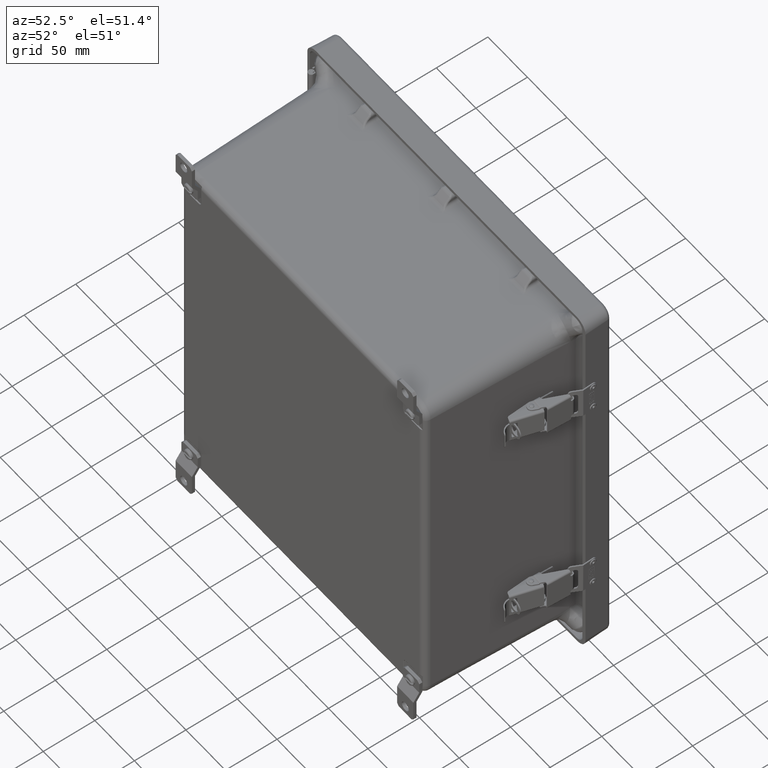
[diagram: clean part render]
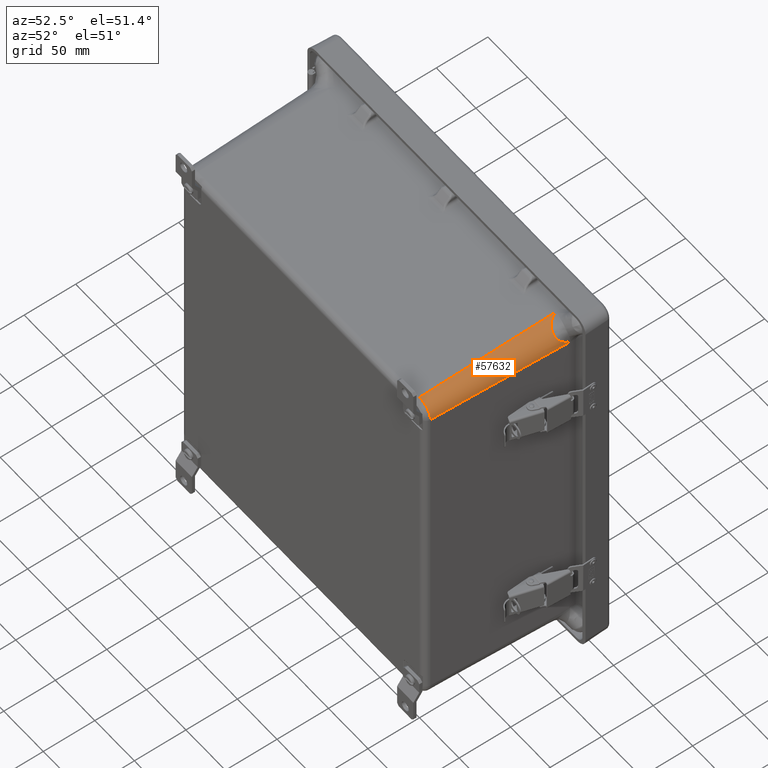
[diagram: same view with one face highlighted and labeled with its STEP entity id]
A machine part, auxiliary view. The second image highlights one B-rep face of the part: STEP entity #57632.
In plain terms, the highlighted conical surface has half-angle 2 deg.
Its self-contained STEP definition (entity closure, byte-faithful):
#1491 = DIRECTION ( 'NONE',  ( 0.0000000000000000000, 1.000000000000000000, 0.0000000000000000000 ) ) ;
#2203 = ORIENTED_EDGE ( 'NONE', *, *, #43623, .F. ) ;
#2614 = CARTESIAN_POINT ( 'NONE',  ( 5.679987494047503000, -0.9575307801325283500, 7.151426502611800000 ) ) ;
#3998 = CARTESIAN_POINT ( 'NONE',  ( 6.178411836836827900, -1.052958364751709800, 6.716936216959720900 ) ) ;
#4910 = EDGE_CURVE ( 'NONE', #35689, #17203, #21859, .T. ) ;
#7169 = CARTESIAN_POINT ( 'NONE',  ( 5.925950539922443000, -1.140795264757232600, 7.033265326212347900 ) ) ;
#7375 = CARTESIAN_POINT ( 'NONE',  ( 5.621246510641986700, -0.8832323153907923900, 7.165316051684122600 ) ) ;
#8574 = CARTESIAN_POINT ( 'NONE',  ( 6.239291214696592600, -0.7433845534150394000, 6.477348340551458300 ) ) ;
#8773 = CARTESIAN_POINT ( 'NONE',  ( 6.150242233827873100, -1.097426850505620200, 6.776583432548924300 ) ) ;
#10130 = CARTESIAN_POINT ( 'NONE',  ( 5.514759860282454800, -5.886844587691332000, 6.452978309398321100 ) ) ;
#10671 = CONICAL_SURFACE ( 'NONE', #61290, 0.7510500000000007700, 0.03490658503988666700 ) ;
#11949 = CARTESIAN_POINT ( 'NONE',  ( 5.888237045062486400, -1.125173721257649800, 7.058854199394057000 ) ) ;
#12138 = FACE_OUTER_BOUND ( 'NONE', #36748, .T. ) ;
#12150 = CARTESIAN_POINT ( 'NONE',  ( 5.569111246878644100, -0.8031829212671555100, 7.173913658273606100 ) ) ;
#13332 = CARTESIAN_POINT ( 'NONE',  ( 6.235851312620466700, -0.7999947081710109300, 6.506695316036054800 ) ) ;
#13549 = CARTESIAN_POINT ( 'NONE',  ( 6.120509643086672100, -1.124809575850616000, 6.826687679674548400 ) ) ;
#13636 = CARTESIAN_POINT ( 'NONE',  ( 5.514759860282454800, -0.6878654707445428500, 7.179828810769564000 ) ) ;
#14911 = DIRECTION ( 'NONE',  ( 0.0000000000000000000, 0.0000000000000000000, -1.000000000000000000 ) ) ;
#15123 = EDGE_CURVE ( 'NONE', #54061, #58144, #44282, .T. ) ;
#15347 = LINE ( 'NONE', #33100, #51645 ) ;
#15400 = CARTESIAN_POINT ( 'NONE',  ( 5.514759860282454800, -5.886844587691329300, 6.998276459434253900 ) ) ;
#16687 = CARTESIAN_POINT ( 'NONE',  ( 5.838952295910280200, -1.098442055014640800, 7.088103871977986100 ) ) ;
#16899 = CARTESIAN_POINT ( 'NONE',  ( 5.539476739019201000, -0.7467147203375197300, 7.177382253432628400 ) ) ;
#17203 = VERTEX_POINT ( 'NONE', #59224 ) ;
#18087 = CARTESIAN_POINT ( 'NONE',  ( 6.227311089718170900, -0.8804847959524350100, 6.558682501122297600 ) ) ;
#18271 = CARTESIAN_POINT ( 'NONE',  ( 6.094928109012484700, -1.140525218739650200, 6.864353307322136100 ) ) ;
#18532 = CARTESIAN_POINT ( 'NONE',  ( 5.514759860282454800, -1.156043319571057300, 6.452978309398321100 ) ) ;
#20130 = DIRECTION ( 'NONE',  ( 0.0000000000000000000, 0.0000000000000000000, -1.000000000000000000 ) ) ;
#21439 = CARTESIAN_POINT ( 'NONE',  ( 5.779244325676248000, -1.054295614428741000, 7.116371474388640400 ) ) ;
#21641 = CARTESIAN_POINT ( 'NONE',  ( 5.520282036880981700, -0.7028933228596210300, 7.179304026609898400 ) ) ;
#21802 = AXIS2_PLACEMENT_3D ( 'NONE', #10130, #43271, #14911 ) ;
#21859 = CIRCLE ( 'NONE', #57810, 0.7105013706312298700 ) ;
#22793 = CARTESIAN_POINT ( 'NONE',  ( 6.213510190717571800, -0.9551322726255288000, 6.617285435856517000 ) ) ;
#23018 = CARTESIAN_POINT ( 'NONE',  ( 6.045705688641075600, -1.156043319571060000, 6.926223117663457900 ) ) ;
#23292 = DIRECTION ( 'NONE',  ( 0.0000000000000000000, 0.0000000000000000000, -1.000000000000000000 ) ) ;
#23561 = DIRECTION ( 'NONE',  ( 0.03489949670250104600, 0.9993908270190957600, 0.0000000000000000000 ) ) ;
#24509 = VERTEX_POINT ( 'NONE', #13636 ) ;
#26215 = CARTESIAN_POINT ( 'NONE',  ( 5.744643217420730300, -1.024036304310188100, 7.130243405876011100 ) ) ;
#26702 = B_SPLINE_CURVE_WITH_KNOTS ( 'NONE', 3,
 ( #40127, #49632, #35536, #7169, #40333, #11949, #45069, #16687, #49837, #21439, #54547, #26215, #59330, #30964, #2614, #35743, #7375, #40521, #12150, #45273, #16899, #50037, #21641, #54754 ),
 .UNSPECIFIED., .F., .F.,
 ( 4, 2, 2, 2, 2, 2, 2, 2, 2, 2, 2, 4 ),
 ( 3.469446951953614200E-018, 0.002426579721962712200, 0.003639869582944066700, 0.004853159443925420800, 0.007279739165888198500, 0.008493029026869616800, 0.009706318887851034200, 0.01213289860981388600, 0.01455947833177673900, 0.01698605805373959400, 0.01819934791472104300, 0.01941263777570249500 ),
 .UNSPECIFIED. ) ;
#27544 = ORIENTED_EDGE ( 'NONE', *, *, #54843, .T. ) ;
#27594 = CARTESIAN_POINT ( 'NONE',  ( 6.196363179894262000, -1.011718899480175600, 6.671038573730122300 ) ) ;
#27985 = CARTESIAN_POINT ( 'NONE',  ( 5.514759860282454800, 0.005117501308141511400, 7.204028309398322200 ) ) ;
#29645 = ORIENTED_EDGE ( 'NONE', *, *, #4910, .T. ) ;
#30964 = CARTESIAN_POINT ( 'NONE',  ( 5.700790242073137100, -0.9807123007714347900, 7.145417738483393700 ) ) ;
#31969 = CARTESIAN_POINT ( 'NONE',  ( 6.023043583009056500, -1.156043319571060000, 6.949425542123050200 ) ) ;
#32143 = ORIENTED_EDGE ( 'NONE', *, *, #38752, .T. ) ;
#32165 = CARTESIAN_POINT ( 'NONE',  ( 6.241742277826465300, -0.6840878858090632100, 6.452978309398321100 ) ) ;
#32358 = CARTESIAN_POINT ( 'NONE',  ( 6.183280157816374100, -1.043128550387321300, 6.705294303357436400 ) ) ;
#32702 = ORIENTED_EDGE ( 'NONE', *, *, #15123, .T. ) ;
#33100 = CARTESIAN_POINT ( 'NONE',  ( 6.265809860282455900, 0.005117501308141511400, 6.452978309398321100 ) ) ;
#35536 = CARTESIAN_POINT ( 'NONE',  ( 5.963169097911922700, -1.152100256554891500, 7.005159179034730100 ) ) ;
#35689 = VERTEX_POINT ( 'NONE', #31969 ) ;
#35743 = CARTESIAN_POINT ( 'NONE',  ( 5.640234619254226100, -0.9088211746607494100, 7.161377704973273400 ) ) ;
#36748 = EDGE_LOOP ( 'NONE', ( #27544, #32143, #29645, #48885, #2203, #32702 ) ) ;
#36914 = CARTESIAN_POINT ( 'NONE',  ( 6.240631905435815700, -0.7141828377404601000, 6.464329438304420500 ) ) ;
#36993 = VERTEX_POINT ( 'NONE', #41051 ) ;
#37129 = CARTESIAN_POINT ( 'NONE',  ( 6.162524220692981600, -1.080880675640739200, 6.752342818864487800 ) ) ;
#37973 = VECTOR ( 'NONE', #61101, 39.37007874015748900 ) ;
#38752 = EDGE_CURVE ( 'NONE', #36993, #35689, #42633, .T. ) ;
#40127 = CARTESIAN_POINT ( 'NONE',  ( 6.010368976948479200, -1.156043319571057300, 6.962079282827342100 ) ) ;
#40333 = CARTESIAN_POINT ( 'NONE',  ( 5.913264865372306100, -1.136075625140325900, 7.042234541328917400 ) ) ;
#40521 = CARTESIAN_POINT ( 'NONE',  ( 5.585750149294875100, -0.8304874211240495000, 7.171574625692580100 ) ) ;
#41051 = CARTESIAN_POINT ( 'NONE',  ( 6.241742277826465300, -0.6840878858090632100, 6.452978309398321100 ) ) ;
#41694 = CARTESIAN_POINT ( 'NONE',  ( 6.238529287866606800, -0.7577055658338199800, 6.484377731423123200 ) ) ;
#41890 = CARTESIAN_POINT ( 'NONE',  ( 6.128411681569585500, -1.118426198038611000, 6.813977313812640300 ) ) ;
#42633 = B_SPLINE_CURVE_WITH_KNOTS ( 'NONE', 3,
 ( #32165, #60490, #36914, #8574, #41694, #13332, #46433, #18087, #51217, #22793, #55950, #27594, #60697, #32358, #3998, #37129, #8773, #41890, #13549, #46645, #18271, #51432, #23018, #56157 ),
 .UNSPECIFIED., .F., .F.,
 ( 4, 2, 2, 2, 2, 2, 2, 2, 2, 2, 2, 4 ),
 ( 2.056339569405640700E-014, 0.001216430981734523900, 0.002432861963448484300, 0.004865723926876395700, 0.007298585890304307500, 0.009731447853732219300, 0.01094787883544619400, 0.01216430981716016600, 0.01459717178058818300, 0.01581360276230221400, 0.01703003374401624100, 0.01946289570744430200 ),
 .UNSPECIFIED. ) ;
#43271 = DIRECTION ( 'NONE',  ( -0.0000000000000000000, 1.000000000000000000, 0.0000000000000000000 ) ) ;
#43623 = EDGE_CURVE ( 'NONE', #54061, #24509, #52069, .T. ) ;
#44282 = CIRCLE ( 'NONE', #21802, 0.5452981500359327400 ) ;
#45069 = CARTESIAN_POINT ( 'NONE',  ( 5.875834305709149800, -1.118984517517051000, 7.066558565896828600 ) ) ;
#45273 = CARTESIAN_POINT ( 'NONE',  ( 5.546575323354185000, -0.7609837769795111400, 7.176615748396163700 ) ) ;
#46433 = CARTESIAN_POINT ( 'NONE',  ( 6.233545084300744500, -0.8273055294642834800, 6.523181654788698000 ) ) ;
#46645 = CARTESIAN_POINT ( 'NONE',  ( 6.103780422233378500, -1.135840091424580800, 6.851849487406402000 ) ) ;
#48885 = ORIENTED_EDGE ( 'NONE', *, *, #53430, .T. ) ;
#49632 = CARTESIAN_POINT ( 'NONE',  ( 5.987209385483066800, -1.156043319571063800, 6.984625114140942300 ) ) ;
#49837 = CARTESIAN_POINT ( 'NONE',  ( 5.814797091467690700, -1.082127542447413500, 7.100387999564013300 ) ) ;
#50037 = CARTESIAN_POINT ( 'NONE',  ( 5.526305002913679800, -0.7176813404041710900, 7.178725806533290800 ) ) ;
#51217 = CARTESIAN_POINT ( 'NONE',  ( 6.223406018408193000, -0.9061397969958815400, 6.577587867082376000 ) ) ;
#51432 = CARTESIAN_POINT ( 'NONE',  ( 6.066784687048763800, -1.151952655517065200, 6.901589485149930400 ) ) ;
#51645 = VECTOR ( 'NONE', #23561, 39.37007874015748900 ) ;
#51687 = DIRECTION ( 'NONE',  ( -0.0000000000000000000, -1.000000000000000000, -0.0000000000000000000 ) ) ;
#52069 = LINE ( 'NONE', #27985, #37973 ) ;
#53272 = CARTESIAN_POINT ( 'NONE',  ( 5.514759860282454800, 0.005117501308141511400, 6.452978309398321100 ) ) ;
#53430 = EDGE_CURVE ( 'NONE', #17203, #24509, #26702, .T. ) ;
#54061 = VERTEX_POINT ( 'NONE', #15400 ) ;
#54547 = CARTESIAN_POINT ( 'NONE',  ( 5.767490331197361500, -1.044432462515400200, 7.121292240109233300 ) ) ;
#54754 = CARTESIAN_POINT ( 'NONE',  ( 5.514759860282454800, -0.6878654707445428500, 7.179828810769564000 ) ) ;
#54843 = EDGE_CURVE ( 'NONE', #58144, #36993, #15347, .T. ) ;
#55950 = CARTESIAN_POINT ( 'NONE',  ( 6.207518759149520400, -0.9785342481026377800, 6.638127652478090100 ) ) ;
#56157 = CARTESIAN_POINT ( 'NONE',  ( 6.023043583009056500, -1.156043319571060000, 6.949425542123050200 ) ) ;
#57472 = CARTESIAN_POINT ( 'NONE',  ( 6.060058010318387600, -5.886844587691329300, 6.452978309398321100 ) ) ;
#57632 = ADVANCED_FACE ( 'NONE', ( #12138 ), #10671, .T. ) ;
#57810 = AXIS2_PLACEMENT_3D ( 'NONE', #18532, #51687, #23292 ) ;
#58144 = VERTEX_POINT ( 'NONE', #57472 ) ;
#59224 = CARTESIAN_POINT ( 'NONE',  ( 6.010368976948479200, -1.156043319571057300, 6.962079282827342100 ) ) ;
#59330 = CARTESIAN_POINT ( 'NONE',  ( 5.733491482668561000, -1.013460090861512800, 7.134301439894262100 ) ) ;
#60490 = CARTESIAN_POINT ( 'NONE',  ( 6.241212022822445200, -0.6992724024090719600, 6.458396630410253400 ) ) ;
#60697 = CARTESIAN_POINT ( 'NONE',  ( 6.192263196056404500, -1.022496894921839800, 6.682329512547674700 ) ) ;
#61101 = DIRECTION ( 'NONE',  ( 3.462506629621212200E-018, 0.9993908270190957600, 0.03489949670250104600 ) ) ;
#61290 = AXIS2_PLACEMENT_3D ( 'NONE', #53272, #1491, #20130 ) ;